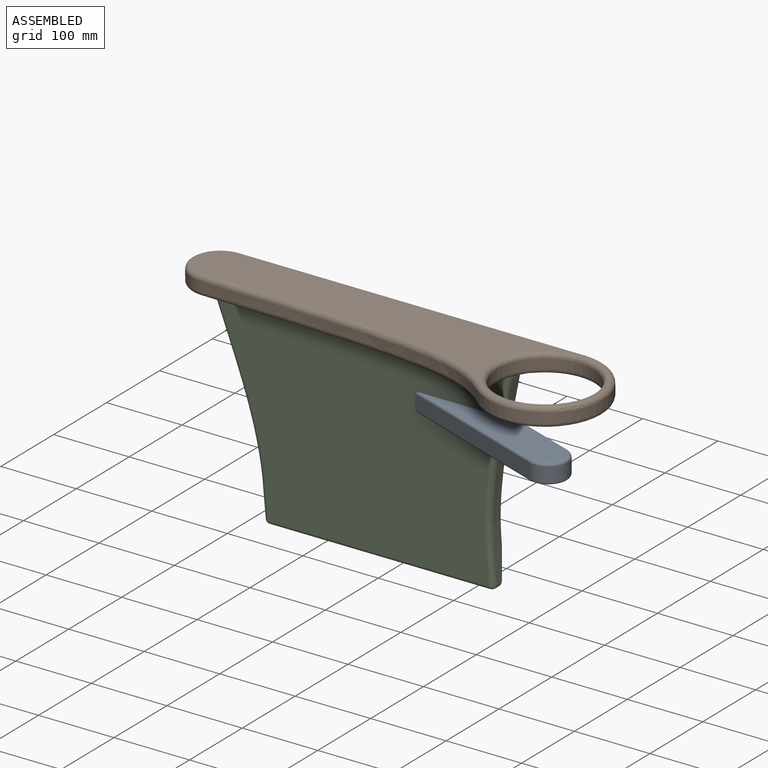
[diagram: assembled view]
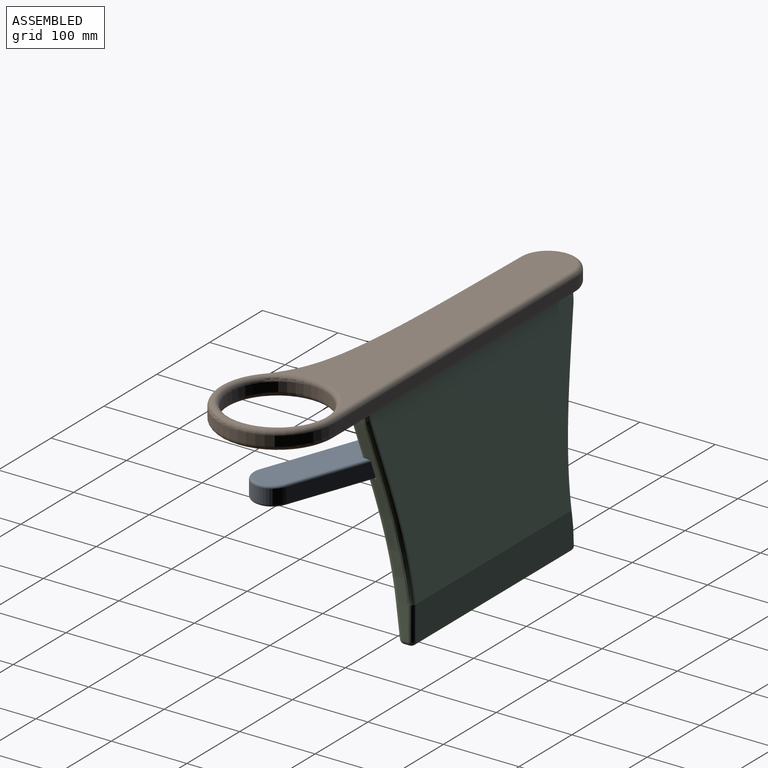
[diagram: assembled view, second angle]
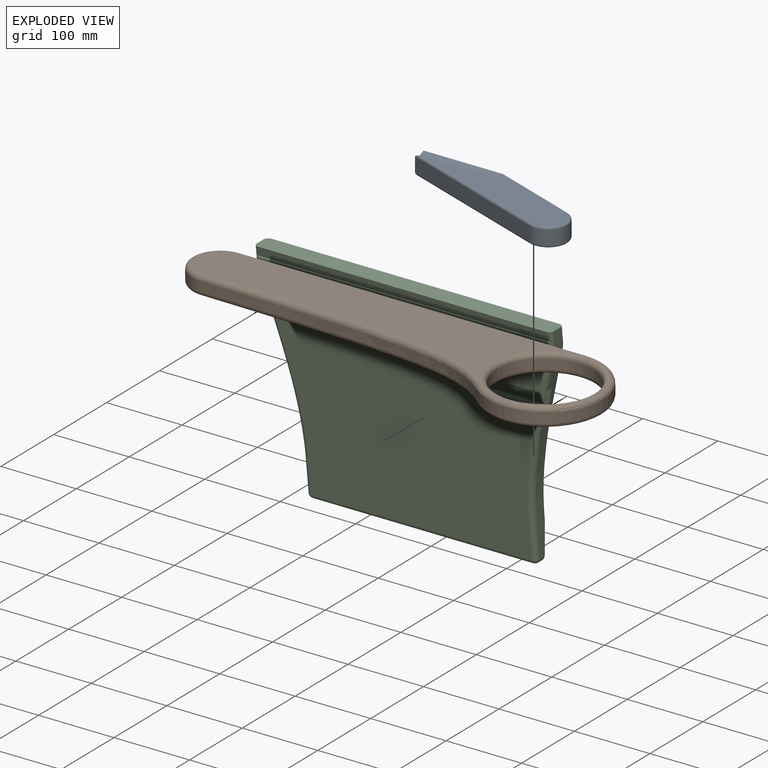
[diagram: exploded view]
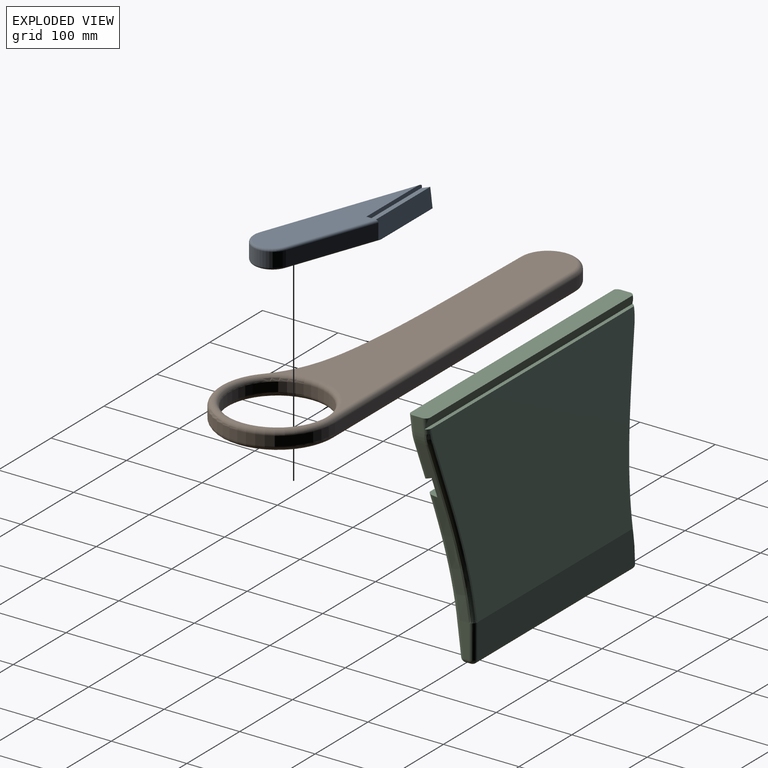
[diagram: exploded view, second angle]
ASSEMBLY  parts=3 mates=2
PART A: 21 faces, bbox 238.9x94.8x25.4 mm
  f0: plane 102.66x2.27mm, normal (0,0.99,0.12), area 234.9mm2, adj f1,f9,f10,f13
  f1: plane 102.66x13.02mm, normal (0,-0.14,-0.99), area 1346.6mm2, adj f0,f2,f10,f13,f20
  f2: plane 102.66x24.96mm, normal (0,0.99,0.12), area 2578.4mm2, adj f1,f3,f10,f12,f17,f20
  f3: plane 102.66x12.19mm, normal (0,-0.37,0.93), area 1349.7mm2, adj f2,f4,f10,f11,f17
  f4: plane 102.66x4.93mm, normal (0,0.99,0.12), area 507.3mm2, adj f3,f8,f10,f11,f15
  f5: plane 23.23x2.3mm, normal (0,1,0), area 50.4mm2, adj f6,f10,f15,f18
  f6: plane 202.76x73.8mm, normal (-0.34,-0.94,0), area 4110.5mm2, adj f5,f14,f15,f18
  f7: plane 115.18x41.92mm, normal (0.34,0.94,0), area 2335mm2, adj f12,f14,f17,f20
  f8: plane 224.39x84.64mm, normal (0,0,1), area 7479mm2, adj f4,f11,f15,f16,f17
  f9: plane 231.37x84.64mm, normal (0,0,-1), area 7790.2mm2, adj f0,f10,f13,f18,f19,f20
  f10: plane 25.4x15.86mm, normal (-1,0,0), area 314.8mm2, adj f0,f1,f2,f3,f4,f5,f9,f15
  f11: plane 12.77x4.93mm, normal (-1,0,0), area 31.5mm2, adj f3,f4,f8,f17
  f12: plane 23.29x3.06mm, normal (-1,0,0), area 35.7mm2, adj f2,f7,f17,f20
  f13: plane 11.66x2.27mm, normal (-1,0,0), area 16.2mm2, adj f0,f1,f9,f20
  f14: cylinder r=25.4mm len=49.27mm, axis (0,0,-1), area 1520.1mm2, adj f6,f7,f16,f19
  f15: cylinder r=3.17mm len=203.85mm, axis (-0.94,0.34,0), area 1060.6mm2, adj f4,f5,f6,f8,f10,f16
  f16: torus R=22.23mm, axis (0,0,1), area 379.9mm2, adj f8,f14,f15,f17
  f17: cylinder r=3.17mm len=116.27mm, axis (0.94,-0.34,0), area 609.2mm2, adj f2,f3,f7,f8,f11,f12,f16
  f18: cylinder r=3.17mm len=203.85mm, axis (0.94,-0.34,0), area 1069.7mm2, adj f5,f6,f9,f10,f19
  f19: torus R=22.23mm, axis (0,0,1), area 379.9mm2, adj f9,f14,f18,f20
  f20: cylinder r=3.17mm len=120.29mm, axis (-0.94,0.34,0), area 613.1mm2, adj f1,f2,f7,f9,f12,f13,f19
PART B: 20 faces, bbox 645.7x171.1x25.7 mm
  f0: torus R=31.75mm, axis (0,0,1), area 316.5mm2, adj f2,f7,f11,f17
  f1: plane 457.2x12.7mm, normal (0,1,0), area 5806.4mm2, adj f2,f4,f11,f13
  f2: cylinder r=38.1mm len=76.19mm, axis (0,0,-1), area 1345.6mm2, adj f0,f1,f3,f10,f14,f16,f17,f18
  f3: extruded ~408.01x57.5mm, area 5318.1mm2, adj f2,f4,f9,f15
  f4: cylinder r=76.2mm len=152.4mm, axis (0,0,-1), area 3733.1mm2, adj f1,f3,f8,f12
  f5: cylinder r=63.5mm len=127mm, axis (0,0,-1), area 5067.1mm2, adj f8,f12
  f6: plane 488.95x122.56mm, normal (0,0,1), area 30858.9mm2, adj f12,f13,f14,f15
  f7: plane 488.95x122.56mm, normal (0,0,-1), area 23245.6mm2, adj f0,f8,f9,f10,f11,f17,f18,f19
  f8: torus R=69.85mm, axis (0,0,1), area 6967.4mm2, adj f4,f5,f7,f9,f11
  f9: bspline ~552.49x96.92mm, area 4192.9mm2, adj f3,f7,f8,f10
  f10: torus R=31.75mm, axis (0,0,1), area 579.9mm2, adj f2,f7,f9,f18
  f11: cylinder r=6.35mm len=457.2mm, axis (-1,0,0), area 4560.4mm2, adj f0,f1,f7,f8
  f12: torus R=69.85mm, axis (0,0,1), area 6967.4mm2, adj f4,f5,f6,f13,f15
  f13: cylinder r=6.35mm len=457.2mm, axis (1,0,0), area 4560.4mm2, adj f1,f6,f12,f14
  f14: torus R=31.75mm, axis (0,0,1), area 1113.9mm2, adj f2,f6,f13,f15
  f15: bspline ~552.49x96.92mm, area 4192.9mm2, adj f3,f6,f12,f14
  f16: plane 419.1x25.4mm, normal (0,0,-1), area 10567.7mm2, adj f2,f17,f18,f19
  f17: plane 411.03x12.78mm, normal (0,-0.97,0.26), area 5390mm2, adj f0,f2,f7,f16,f19
  f18: plane 419.41x13.02mm, normal (0,0.97,0.26), area 5500.7mm2, adj f2,f7,f10,f16,f19
  f19: plane 25.4x12.7mm, normal (-1,0,0), area 279.4mm2, adj f7,f16,f17,f18
PART C: 44 faces, bbox 82.4x401.1x425.6 mm
  f0: plane 381x286.52mm, normal (0.99,0,-0.12), area 91483.4mm2, adj f2,f3,f13,f21,f24,f27,f31,f35
  f1: extruded ~222.2x42.77mm, area 2756.2mm2, adj f2,f3,f16,f18,f25,f40,f41,f42
  f2: bspline ~73.03x25.31mm, area 494.9mm2, adj f0,f1,f38,f41
  f3: bspline ~184.52x37.19mm, area 1556.2mm2, adj f0,f1,f37,f42
  f4: plane 292.1x7.39mm, normal (0,0,-1), area 2157.2mm2, adj f29,f30,f34,f35
  f5: plane 381x241.34mm, normal (-0.99,0,0.12), area 79929.1mm2, adj f6,f12,f19,f20,f22,f23,f25,f26
  f6: plane 298.38x44.45mm, normal (-1,0,0), area 13195.3mm2, adj f5,f26,f28,f29
  f7: plane 18.81x15.11mm, normal (0,-1,0), area 240.7mm2, adj f10,f17,f20,f21
  f8: plane 18.86x15.11mm, normal (0,1,0), area 241.4mm2, adj f10,f18,f19,f39
  f9: plane 393x14.96mm, normal (0.97,0,-0.26), area 5109.9mm2, adj f10,f13,f21,f39
  f10: plane 394.03x25.47mm, normal (0,0,1), area 9869.4mm2, adj f7,f8,f9,f11,f19,f20,f21,f39
  f11: plane 398.77x18.09mm, normal (-0.97,0,-0.26), area 5130.6mm2, adj f10,f12,f19,f20
  f12: plane 393.64x5.23mm, normal (0,0,1), area 1936.4mm2, adj f5,f11,f19,f20
  f13: plane 390.87x2.42mm, normal (0,0,1), area 887.3mm2, adj f0,f9,f21,f39
  f14: plane 44.45x18.26mm, normal (0,-1,0), area 568.8mm2, adj f15,f26,f30,f31
  f15: extruded ~222.15x42.75mm, area 2903.9mm2, adj f14,f17,f26,f27
  f16: plane 44.45x12.84mm, normal (0,1,0), area 449.6mm2, adj f1,f25,f28,f34,f37
  f17: cylinder r=50.8mm len=14.2mm, axis (1,0,0), area 168.7mm2, adj f7,f15,f23,f24
  f18: cylinder r=50.8mm len=14.19mm, axis (1,0,0), area 167.4mm2, adj f1,f8,f22,f38
  f19: cylinder r=6.35mm len=19.64mm, axis (-0.12,0,-0.99), area 131mm2, adj f5,f8,f10,f11,f12,f22
  f20: cylinder r=6.35mm len=19.58mm, axis (0.12,0,0.99), area 115.4mm2, adj f5,f7,f10,f11,f12,f23
  f21: cylinder r=6.35mm len=20.3mm, axis (-0.12,0,-0.99), area 142.7mm2, adj f0,f7,f9,f10,f13,f24
  f22: bspline ~13.71x7.82mm, area 126.7mm2, adj f5,f18,f19,f25
  f23: bspline ~24.86x9.13mm, area 127.6mm2, adj f5,f17,f20,f26
  f24: bspline ~13.18x7.84mm, area 125mm2, adj f0,f17,f21,f27
  f25: bspline ~236.44x51.82mm, area 2325.5mm2, adj f1,f5,f16,f22,f28
  f26: bspline ~399.48x55.26mm, area 2511.5mm2, adj f5,f6,f14,f15,f23,f29,f30
  f27: bspline ~235.76x51.61mm, area 2252.9mm2, adj f0,f15,f24,f31
  f28: cylinder r=6.35mm len=44.45mm, axis (0,0,-1), area 441.4mm2, adj f6,f16,f25,f32
  f29: cylinder r=6.35mm len=298.4mm, axis (0,-1,0), area 2953.9mm2, adj f4,f6,f26,f30,f32
  f30: cylinder r=6.35mm len=13.69mm, axis (-1,0,0), area 113.6mm2, adj f4,f14,f26,f29,f33
  f31: cylinder r=6.35mm len=45.22mm, axis (-0.12,0,-0.99), area 446.7mm2, adj f0,f14,f27,f33
  f32: sphere r=6.35mm, area 86.4mm2, adj f28,f29,f34
  f33: sphere r=6.35mm, area 58.4mm2, adj f30,f31,f35
  f34: cylinder r=6.35mm len=7.39mm, axis (1,0,0), area 73.7mm2, adj f4,f16,f32,f36
  f35: cylinder r=6.35mm len=292.1mm, axis (0,1,0), area 2687mm2, adj f0,f4,f33,f36
  f36: sphere r=6.35mm, area 36.5mm2, adj f34,f35,f37
  f37: cylinder r=6.35mm len=45.22mm, axis (0.12,0,0.99), area 446.7mm2, adj f0,f3,f16,f36
  f38: bspline ~13.08x7.82mm, area 124mm2, adj f0,f2,f18,f39
  f39: cylinder r=6.35mm len=20.36mm, axis (0.12,0,0.99), area 143.2mm2, adj f0,f8,f9,f10,f13,f38
  f40: plane 113.38x24.98mm, normal (0.99,0,-0.12), area 2766.6mm2, adj f1,f41,f42,f43
  f41: plane 113.65x12.48mm, normal (-0.37,0,-0.93), area 1473.2mm2, adj f0,f1,f2,f40,f43
  f42: plane 108.33x14.38mm, normal (-0.14,0,0.99), area 1397.7mm2, adj f0,f1,f3,f40,f43
  f43: plane 24.96x15.26mm, normal (0,1,0), area 276.1mm2, adj f0,f40,f41,f42
PLACE A t=(293.92,97,-163.58)mm
PLACE B t=(-100.79,125.94,-74.68)mm fixed
PLACE C rot(axis=(0,0,-1),90deg) t=(280.21,113.24,-61.98)mm
MATE fastened C.f42 <-> A.f1  axis (0,0.14,0.99) through (153.21,112.86,-163.14)mm
MATE parallel C.f11 <-> B.f17  axis (0,0.97,-0.26) through (83.36,111.53,-68.36)mm
